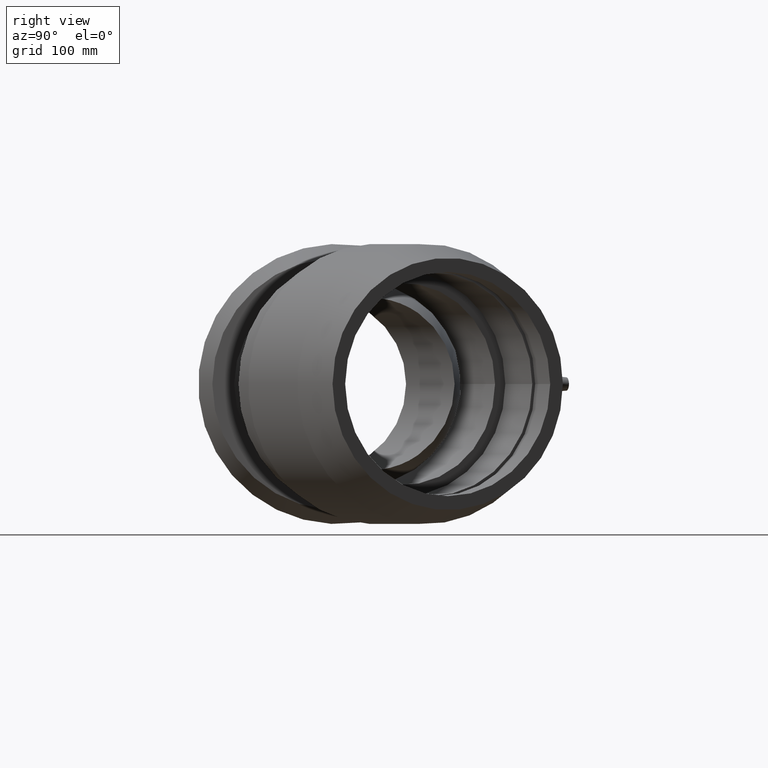
[diagram: clean part render]
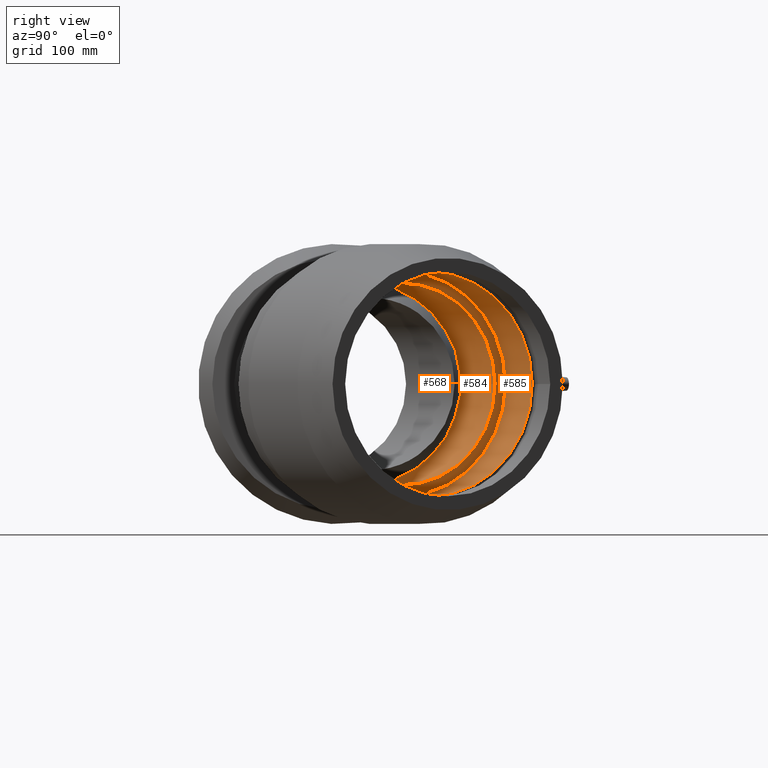
[diagram: same view with one multi-face feature highlighted, each face labeled with its STEP entity id]
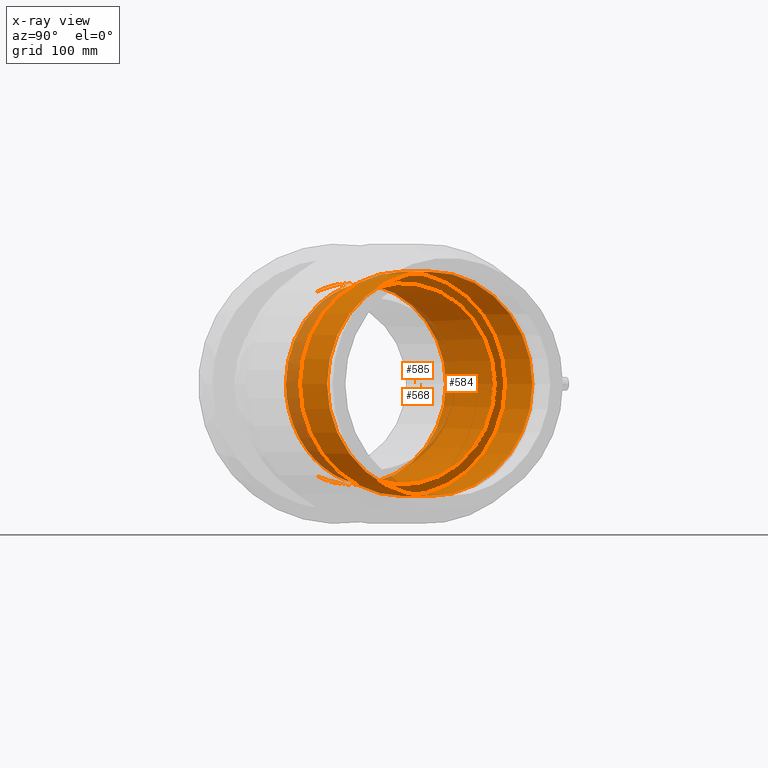
[diagram: x-ray of the same camera — body ghosted, the whole feature saturated]
A machine part, right view. The highlighted faces form ONE feature: a stepped (counterbored) hole: 2 coaxial cylindrical walls of radii 112.5 -> 125 mm joined by 1 annular planar shoulder face(s). The faces share edges in the B-rep.
The next image is the same camera in x-ray: the body ghosted and the whole hole feature saturated, so the bore chain is visible through the body.
Their STEP definitions:
[1] entity #585 (Cylinder):
#61=CYLINDRICAL_SURFACE('',#680,125.);
#106=FACE_BOUND('',#251,.T.);
#157=FACE_OUTER_BOUND('',#250,.T.);
#250=EDGE_LOOP('',(#526));
#251=EDGE_LOOP('',(#527));
#313=CIRCLE('',#679,125.);
#314=CIRCLE('',#681,125.);
#365=VERTEX_POINT('',#1367);
#366=VERTEX_POINT('',#1370);
#421=EDGE_CURVE('',#365,#365,#313,.T.);
#422=EDGE_CURVE('',#366,#366,#314,.T.);
#526=ORIENTED_EDGE('',*,*,#422,.T.);
#527=ORIENTED_EDGE('',*,*,#421,.F.);
#585=ADVANCED_FACE('',(#157,#106),#61,.F.);
#679=AXIS2_PLACEMENT_3D('',#1368,#865,#866);
#680=AXIS2_PLACEMENT_3D('',#1369,#867,#868);
#681=AXIS2_PLACEMENT_3D('',#1371,#869,#870);
#865=DIRECTION('center_axis',(0.913545457642601,0.406736643075799,1.19788532833232E-16));
#866=DIRECTION('ref_axis',(1.19788532833232E-16,2.54618386665283E-17,-1.));
#867=DIRECTION('center_axis',(0.913545457642601,0.406736643075799,1.19788532833232E-16));
#868=DIRECTION('ref_axis',(-0.406736643075799,0.913545457642601,-2.54618386665283E-17));
#869=DIRECTION('center_axis',(0.913545457642601,0.406736643075799,1.19788532833232E-16));
#870=DIRECTION('ref_axis',(1.19788532833232E-16,2.54618386665283E-17,-1.));
#1367=CARTESIAN_POINT('',(280.813058510214,185.92148624666,1.79420654119607E-14));
#1368=CARTESIAN_POINT('Origin',(331.655138894689,71.7283040413347,2.11247952452767E-14));
#1369=CARTESIAN_POINT('Origin',(365.364966281701,86.7368861708317,2.5544992106823E-14));
#1370=CARTESIAN_POINT('',(348.232713284238,215.938650505654,2.67824591350532E-14));
#1371=CARTESIAN_POINT('Origin',(399.074793668713,101.745468300329,2.99651889683692E-14));
[2] entity #568 (Cylinder):
#55=CYLINDRICAL_SURFACE('',#647,112.5);
#90=FACE_BOUND('',#218,.T.);
#140=FACE_OUTER_BOUND('',#217,.T.);
#217=EDGE_LOOP('',(#490,#491,#492));
#218=EDGE_LOOP('',(#493));
#263=B_SPLINE_CURVE_WITH_KNOTS('',3,(#894,#895,#896,#897,#898,#899,#900,
#901,#902,#903,#904,#905,#906,#907,#908,#909,#910,#911,#912,#913,#914,#915,
#916,#917,#918,#919,#920,#921,#922,#923,#924,#925,#926,#927,#928,#929,#930,
#931,#932,#933,#934,#935,#936,#937,#938,#939,#940,#941,#942,#943,#944,#945),
 .UNSPECIFIED.,.F.,.F.,(4,2,2,2,2,2,2,2,2,2,2,2,2,2,2,2,2,2,2,2,2,2,2,2,
2,4),(-46.1888899912947,-46.1614777300863,-44.6798500027999,-43.1982222755135,
-42.0410535056663,-40.8838847358192,-40.4508427336772,-40.0178007315353,
-39.5350995546189,-39.2937489661607,-39.0523983777025,-38.8110477892443,
-38.5696972007861,-38.0869960238696,-37.6539540217277,-37.2209120195858,
-36.0637432497386,-34.9065744798915,-33.4249467526051,-31.9433190253187,
-30.4616912980323,-28.9800635707458,-26.6165974752722,-24.2531313797985,
-21.8896652843249,-19.5261991888512),.UNSPECIFIED.);
#264=B_SPLINE_CURVE_WITH_KNOTS('',3,(#948,#949,#950,#951,#952,#953,#954,
#955,#956,#957,#958,#959,#960,#961,#962,#963,#964,#965,#966,#967,#968,#969,
#970,#971,#972,#973,#974,#975,#976,#977,#978,#979,#980,#981,#982,#983,#984,
#985,#986,#987,#988,#989,#990,#991,#992,#993,#994,#995,#996,#997,#998,#999,
#1000),.UNSPECIFIED.,.F.,.F.,(4,2,2,2,2,2,2,2,2,2,2,2,2,2,2,3,2,2,2,2,2,
2,2,2,2,4),(-19.5261991888512,-17.1627330933776,-14.7992669979039,-12.4358009024303,
-10.0723348069566,-8.59070707967021,-7.1090793523838,-5.62745162509738,
-4.14582389781097,-2.98865512796382,-1.83148635811668,-1.39844435597475,
-0.9654023538328,-0.482701176916393,-0.241350588458189,0.,0.241350588458202,
0.482701176916404,0.965402353832807,1.39844435597475,1.83148635811669,2.98865512796384,
4.14582389781099,5.6274516250974,7.10907935238381,7.13649161359224),
 .UNSPECIFIED.);
#298=CIRCLE('',#648,112.5);
#299=CIRCLE('',#649,112.5);
#319=VERTEX_POINT('',#891);
#320=VERTEX_POINT('',#893);
#321=VERTEX_POINT('',#946);
#349=VERTEX_POINT('',#1253);
#372=EDGE_CURVE('',#320,#319,#263,.T.);
#374=EDGE_CURVE('',#319,#321,#264,.T.);
#404=EDGE_CURVE('',#320,#321,#298,.T.);
#405=EDGE_CURVE('',#349,#349,#299,.T.);
#490=ORIENTED_EDGE('',*,*,#372,.T.);
#491=ORIENTED_EDGE('',*,*,#374,.T.);
#492=ORIENTED_EDGE('',*,*,#404,.F.);
#493=ORIENTED_EDGE('',*,*,#405,.T.);
#568=ADVANCED_FACE('',(#140,#90),#55,.F.);
#647=AXIS2_PLACEMENT_3D('',#1251,#801,#802);
#648=AXIS2_PLACEMENT_3D('',#1252,#803,#804);
#649=AXIS2_PLACEMENT_3D('',#1254,#805,#806);
#801=DIRECTION('center_axis',(0.913545457642601,0.406736643075799,1.19788532833232E-16));
#802=DIRECTION('ref_axis',(-0.406736643075799,0.913545457642601,-2.54618386665283E-17));
#803=DIRECTION('center_axis',(0.913545457642601,0.406736643075799,1.19788532833232E-16));
#804=DIRECTION('ref_axis',(1.19788532833232E-16,2.54618386665283E-17,-1.));
#805=DIRECTION('center_axis',(0.913545457642601,0.406736643075799,1.19788532833232E-16));
#806=DIRECTION('ref_axis',(1.19788532833232E-16,2.54618386665283E-17,-1.));
#891=CARTESIAN_POINT('',(315.93140194137,-58.4189360224589,0.));
#893=CARTESIAN_POINT('',(227.801700814858,-25.9397179032731,-102.219523029734));
#894=CARTESIAN_POINT('Ctrl Pts',(227.801700814858,-25.9397179032732,-102.219523029734));
#895=CARTESIAN_POINT('Ctrl Pts',(227.782970214512,-25.8515973569187,-102.260025893401));
#896=CARTESIAN_POINT('Ctrl Pts',(227.764246868289,-25.7634219688063,-102.300412415486));
#897=CARTESIAN_POINT('Ctrl Pts',(226.73394300176,-20.906410527919,-104.517257692727));
#898=CARTESIAN_POINT('Ctrl Pts',(225.742947701359,-15.9738030058781,-106.34976194955));
#899=CARTESIAN_POINT('Ctrl Pts',(223.922031706787,-6.06749496938946,-109.269058835396));
#900=CARTESIAN_POINT('Ctrl Pts',(223.092264588292,-1.09379272417964,-110.355941381627));
#901=CARTESIAN_POINT('Ctrl Pts',(221.874636927151,7.51537540381043,-111.685985597009));
#902=CARTESIAN_POINT('Ctrl Pts',(221.359642940201,11.6994111076561,-112.127762407932));
#903=CARTESIAN_POINT('Ctrl Pts',(220.644907008276,20.110441941565,-112.553011041626));
#904=CARTESIAN_POINT('Ctrl Pts',(220.447225050233,24.3375706822229,-112.537299590682));
#905=CARTESIAN_POINT('Ctrl Pts',(220.573620831222,29.6317361569896,-112.306466744466));
#906=CARTESIAN_POINT('Ctrl Pts',(220.653647278243,31.2143590498833,-112.21378298127));
#907=CARTESIAN_POINT('Ctrl Pts',(220.968462820491,34.3571292159531,-111.981109392535));
#908=CARTESIAN_POINT('Ctrl Pts',(221.205637717693,35.9170702948545,-111.841568910845));
#909=CARTESIAN_POINT('Ctrl Pts',(221.885681369977,38.8786241287294,-111.551126206677));
#910=CARTESIAN_POINT('Ctrl Pts',(222.413823007661,40.5535582622771,-111.367689052123));
#911=CARTESIAN_POINT('Ctrl Pts',(223.626988929227,42.7227018449423,-111.140950279653));
#912=CARTESIAN_POINT('Ctrl Pts',(224.102022850532,43.3887721072725,-111.074242944557));
#913=CARTESIAN_POINT('Ctrl Pts',(225.219150207993,44.5213095287038,-110.979405979479));
#914=CARTESIAN_POINT('Ctrl Pts',(225.861541706126,44.9875051725231,-110.951545556039));
#915=CARTESIAN_POINT('Ctrl Pts',(227.331439931362,45.6419460268821,-110.951545556039));
#916=CARTESIAN_POINT('Ctrl Pts',(228.107734624392,45.8073901708198,-110.979405979479));
#917=CARTESIAN_POINT('Ctrl Pts',(229.696878054866,45.8797621343892,-111.074242944557));
#918=CARTESIAN_POINT('Ctrl Pts',(230.509724459525,45.7870931364227,-111.140950279653));
#919=CARTESIAN_POINT('Ctrl Pts',(232.933478737412,45.2372107527323,-111.367689052123));
#920=CARTESIAN_POINT('Ctrl Pts',(234.53159310604,44.5089467855043,-111.551126206677));
#921=CARTESIAN_POINT('Ctrl Pts',(237.18749453446,43.0326513941727,-111.841568910845));
#922=CARTESIAN_POINT('Ctrl Pts',(238.505457658073,42.1651023717521,-111.981109392535));
#923=CARTESIAN_POINT('Ctrl Pts',(241.051643759328,40.2961322060853,-112.21378298127));
#924=CARTESIAN_POINT('Ctrl Pts',(242.281309917884,39.2966220301303,-112.306466744466));
#925=CARTESIAN_POINT('Ctrl Pts',(246.300216881252,35.8480642464398,-112.537299590682));
#926=CARTESIAN_POINT('Ctrl Pts',(249.309310683048,32.8726567048367,-112.553011041626));
#927=CARTESIAN_POINT('Ctrl Pts',(255.081673036682,26.7134262334473,-112.127762407932));
#928=CARTESIAN_POINT('Ctrl Pts',(257.846419280848,23.5310447693517,-111.685985597009));
#929=CARTESIAN_POINT('Ctrl Pts',(263.429526091611,16.8655131838896,-110.355941381627));
#930=CARTESIAN_POINT('Ctrl Pts',(266.570484603468,12.9208196442428,-109.269058835396));
#931=CARTESIAN_POINT('Ctrl Pts',(272.713875536794,4.93900144201451,-106.34976194955));
#932=CARTESIAN_POINT('Ctrl Pts',(275.716412006653,0.901989750295616,-104.517257692727));
#933=CARTESIAN_POINT('Ctrl Pts',(281.450434415441,-6.98339911762793,-100.164106742578));
#934=CARTESIAN_POINT('Ctrl Pts',(284.18436237273,-10.8349778591306,-97.6416477326393));
#935=CARTESIAN_POINT('Ctrl Pts',(289.277380899458,-18.1206807053384,-92.0772354082082));
#936=CARTESIAN_POINT('Ctrl Pts',(291.636541320935,-21.5547732580831,-89.0353047162495));
#937=CARTESIAN_POINT('Ctrl Pts',(297.174108700543,-29.6988787082914,-80.8326310601753));
#938=CARTESIAN_POINT('Ctrl Pts',(300.337023075567,-34.4425142774637,-74.9950016755737));
#939=CARTESIAN_POINT('Ctrl Pts',(305.888960518634,-42.8585098508572,-62.042294640774));
#940=CARTESIAN_POINT('Ctrl Pts',(308.278883826617,-46.5312436765606,-54.9278457774499));
#941=CARTESIAN_POINT('Ctrl Pts',(312.115697705181,-52.4602834021991,-39.9190855429027));
#942=CARTESIAN_POINT('Ctrl Pts',(313.566508311679,-54.7223156966646,-32.0101981066605));
#943=CARTESIAN_POINT('Ctrl Pts',(315.474622273742,-57.7020315455989,-15.9898691268831));
#944=CARTESIAN_POINT('Ctrl Pts',(315.93140194137,-58.418936022459,-7.87822031824567));
#945=CARTESIAN_POINT('Ctrl Pts',(315.93140194137,-58.418936022459,-1.75415237890775E-13));
#946=CARTESIAN_POINT('',(227.801700814858,-25.9397179032734,102.219523029734));
#948=CARTESIAN_POINT('Ctrl Pts',(315.93140194137,-58.418936022459,-1.73194791841524E-13));
#949=CARTESIAN_POINT('Ctrl Pts',(315.93140194137,-58.418936022459,7.87822031824532));
#950=CARTESIAN_POINT('Ctrl Pts',(315.474622273743,-57.702031545599,15.9898691268827));
#951=CARTESIAN_POINT('Ctrl Pts',(313.566508311679,-54.7223156966647,32.0101981066602));
#952=CARTESIAN_POINT('Ctrl Pts',(312.115697705181,-52.4602834021992,39.9190855429024));
#953=CARTESIAN_POINT('Ctrl Pts',(308.278883826617,-46.5312436765607,54.9278457774496));
#954=CARTESIAN_POINT('Ctrl Pts',(305.888960518634,-42.8585098508574,62.0422946407737));
#955=CARTESIAN_POINT('Ctrl Pts',(300.337023075567,-34.442514277464,74.9950016755735));
#956=CARTESIAN_POINT('Ctrl Pts',(297.174108700543,-29.6988787082917,80.8326310601751));
#957=CARTESIAN_POINT('Ctrl Pts',(291.636541320935,-21.5547732580834,89.0353047162493));
#958=CARTESIAN_POINT('Ctrl Pts',(289.277380899459,-18.1206807053387,92.077235408208));
#959=CARTESIAN_POINT('Ctrl Pts',(284.18436237273,-10.834977859131,97.641647732639));
#960=CARTESIAN_POINT('Ctrl Pts',(281.450434415441,-6.98339911762835,100.164106742578));
#961=CARTESIAN_POINT('Ctrl Pts',(275.716412006653,0.901989750295242,104.517257692727));
#962=CARTESIAN_POINT('Ctrl Pts',(272.713875536794,4.93900144201422,106.34976194955));
#963=CARTESIAN_POINT('Ctrl Pts',(266.570484603469,12.9208196442425,109.269058835396));
#964=CARTESIAN_POINT('Ctrl Pts',(263.429526091611,16.8655131838892,110.355941381627));
#965=CARTESIAN_POINT('Ctrl Pts',(257.846419280848,23.5310447693513,111.685985597009));
#966=CARTESIAN_POINT('Ctrl Pts',(255.081673036682,26.713426233447,112.127762407932));
#967=CARTESIAN_POINT('Ctrl Pts',(249.309310683048,32.8726567048364,112.553011041626));
#968=CARTESIAN_POINT('Ctrl Pts',(246.300216881252,35.8480642464394,112.537299590682));
#969=CARTESIAN_POINT('Ctrl Pts',(242.281309917884,39.2966220301299,112.306466744466));
#970=CARTESIAN_POINT('Ctrl Pts',(241.051643759328,40.296132206085,112.21378298127));
#971=CARTESIAN_POINT('Ctrl Pts',(238.505457658073,42.1651023717517,111.981109392535));
#972=CARTESIAN_POINT('Ctrl Pts',(237.187494534459,43.0326513941723,111.841568910845));
#973=CARTESIAN_POINT('Ctrl Pts',(234.531593106039,44.5089467855039,111.551126206677));
#974=CARTESIAN_POINT('Ctrl Pts',(232.933478737412,45.2372107527325,111.367689052123));
#975=CARTESIAN_POINT('Ctrl Pts',(230.509724459525,45.7870931364228,111.140950279653));
#976=CARTESIAN_POINT('Ctrl Pts',(229.696878054866,45.8797621343895,111.074242944557));
#977=CARTESIAN_POINT('Ctrl Pts',(228.107734624392,45.8073901708201,110.979405979479));
#978=CARTESIAN_POINT('Ctrl Pts',(227.331439931362,45.6419460268818,110.951545556039));
#979=CARTESIAN_POINT('Ctrl Pts',(226.596490818744,45.3147255997023,110.951545556039));
#980=CARTESIAN_POINT('Ctrl Pts',(225.861541706126,44.9875051725228,110.951545556039));
#981=CARTESIAN_POINT('Ctrl Pts',(225.219150207993,44.5213095287037,110.979405979479));
#982=CARTESIAN_POINT('Ctrl Pts',(224.102022850532,43.3887721072724,111.074242944557));
#983=CARTESIAN_POINT('Ctrl Pts',(223.626988929228,42.7227018449421,111.140950279653));
#984=CARTESIAN_POINT('Ctrl Pts',(222.413823007661,40.553558262277,111.367689052123));
#985=CARTESIAN_POINT('Ctrl Pts',(221.885681369978,38.8786241287293,111.551126206677));
#986=CARTESIAN_POINT('Ctrl Pts',(221.205637717694,35.9170702948545,111.841568910845));
#987=CARTESIAN_POINT('Ctrl Pts',(220.968462820491,34.3571292159531,111.981109392535));
#988=CARTESIAN_POINT('Ctrl Pts',(220.653647278243,31.2143590498832,112.21378298127));
#989=CARTESIAN_POINT('Ctrl Pts',(220.573620831223,29.6317361569895,112.306466744466));
#990=CARTESIAN_POINT('Ctrl Pts',(220.447225050234,24.3375706822227,112.537299590682));
#991=CARTESIAN_POINT('Ctrl Pts',(220.644907008276,20.1104419415648,112.553011041626));
#992=CARTESIAN_POINT('Ctrl Pts',(221.359642940201,11.6994111076559,112.127762407932));
#993=CARTESIAN_POINT('Ctrl Pts',(221.874636927152,7.51537540381017,111.685985597009));
#994=CARTESIAN_POINT('Ctrl Pts',(223.092264588292,-1.09379272417991,110.355941381627));
#995=CARTESIAN_POINT('Ctrl Pts',(223.922031706788,-6.06749496938973,109.269058835396));
#996=CARTESIAN_POINT('Ctrl Pts',(225.742947701359,-15.9738030058783,106.34976194955));
#997=CARTESIAN_POINT('Ctrl Pts',(226.73394300176,-20.9064105279192,104.517257692727));
#998=CARTESIAN_POINT('Ctrl Pts',(227.764246868289,-25.7634219688066,102.300412415486));
#999=CARTESIAN_POINT('Ctrl Pts',(227.782970214512,-25.8515973569189,102.260025893401));
#1000=CARTESIAN_POINT('Ctrl Pts',(227.801700814858,-25.9397179032734,102.219523029734));
#1251=CARTESIAN_POINT('Origin',(270.173529595342,44.3549279623334,1.30630269856002E-14));
#1252=CARTESIAN_POINT('Origin',(208.691920295995,16.9815518833321,5.00125872592368E-15));
#1253=CARTESIAN_POINT('',(285.897266548661,174.502168026127,1.82603383952923E-14));
#1254=CARTESIAN_POINT('Origin',(331.655138894689,71.7283040413347,2.11247952452767E-14));
[3] entity #584 (Plane):
#42=PLANE('',#678);
#105=FACE_BOUND('',#249,.T.);
#156=FACE_OUTER_BOUND('',#248,.T.);
#248=EDGE_LOOP('',(#524));
#249=EDGE_LOOP('',(#525));
#299=CIRCLE('',#649,112.5);
#313=CIRCLE('',#679,125.);
#349=VERTEX_POINT('',#1253);
#365=VERTEX_POINT('',#1367);
#405=EDGE_CURVE('',#349,#349,#299,.T.);
#421=EDGE_CURVE('',#365,#365,#313,.T.);
#524=ORIENTED_EDGE('',*,*,#421,.T.);
#525=ORIENTED_EDGE('',*,*,#405,.F.);
#584=ADVANCED_FACE('',(#156,#105),#42,.F.);
#649=AXIS2_PLACEMENT_3D('',#1254,#805,#806);
#678=AXIS2_PLACEMENT_3D('',#1366,#863,#864);
#679=AXIS2_PLACEMENT_3D('',#1368,#865,#866);
#805=DIRECTION('center_axis',(0.913545457642601,0.406736643075799,1.19788532833232E-16));
#806=DIRECTION('ref_axis',(1.19788532833232E-16,2.54618386665283E-17,-1.));
#863=DIRECTION('center_axis',(-0.913545457642601,-0.406736643075799,-1.19788532833232E-16));
#864=DIRECTION('ref_axis',(0.,0.,1.));
#865=DIRECTION('center_axis',(0.913545457642601,0.406736643075799,1.19788532833232E-16));
#866=DIRECTION('ref_axis',(1.19788532833232E-16,2.54618386665283E-17,-1.));
#1253=CARTESIAN_POINT('',(285.897266548661,174.502168026127,1.82603383952923E-14));
#1254=CARTESIAN_POINT('Origin',(331.655138894689,71.7283040413347,2.11247952452767E-14));
#1366=CARTESIAN_POINT('Origin',(280.813058510214,185.92148624666,1.79420654119607E-14));
#1367=CARTESIAN_POINT('',(280.813058510214,185.92148624666,1.79420654119607E-14));
#1368=CARTESIAN_POINT('Origin',(331.655138894689,71.7283040413347,2.11247952452767E-14));